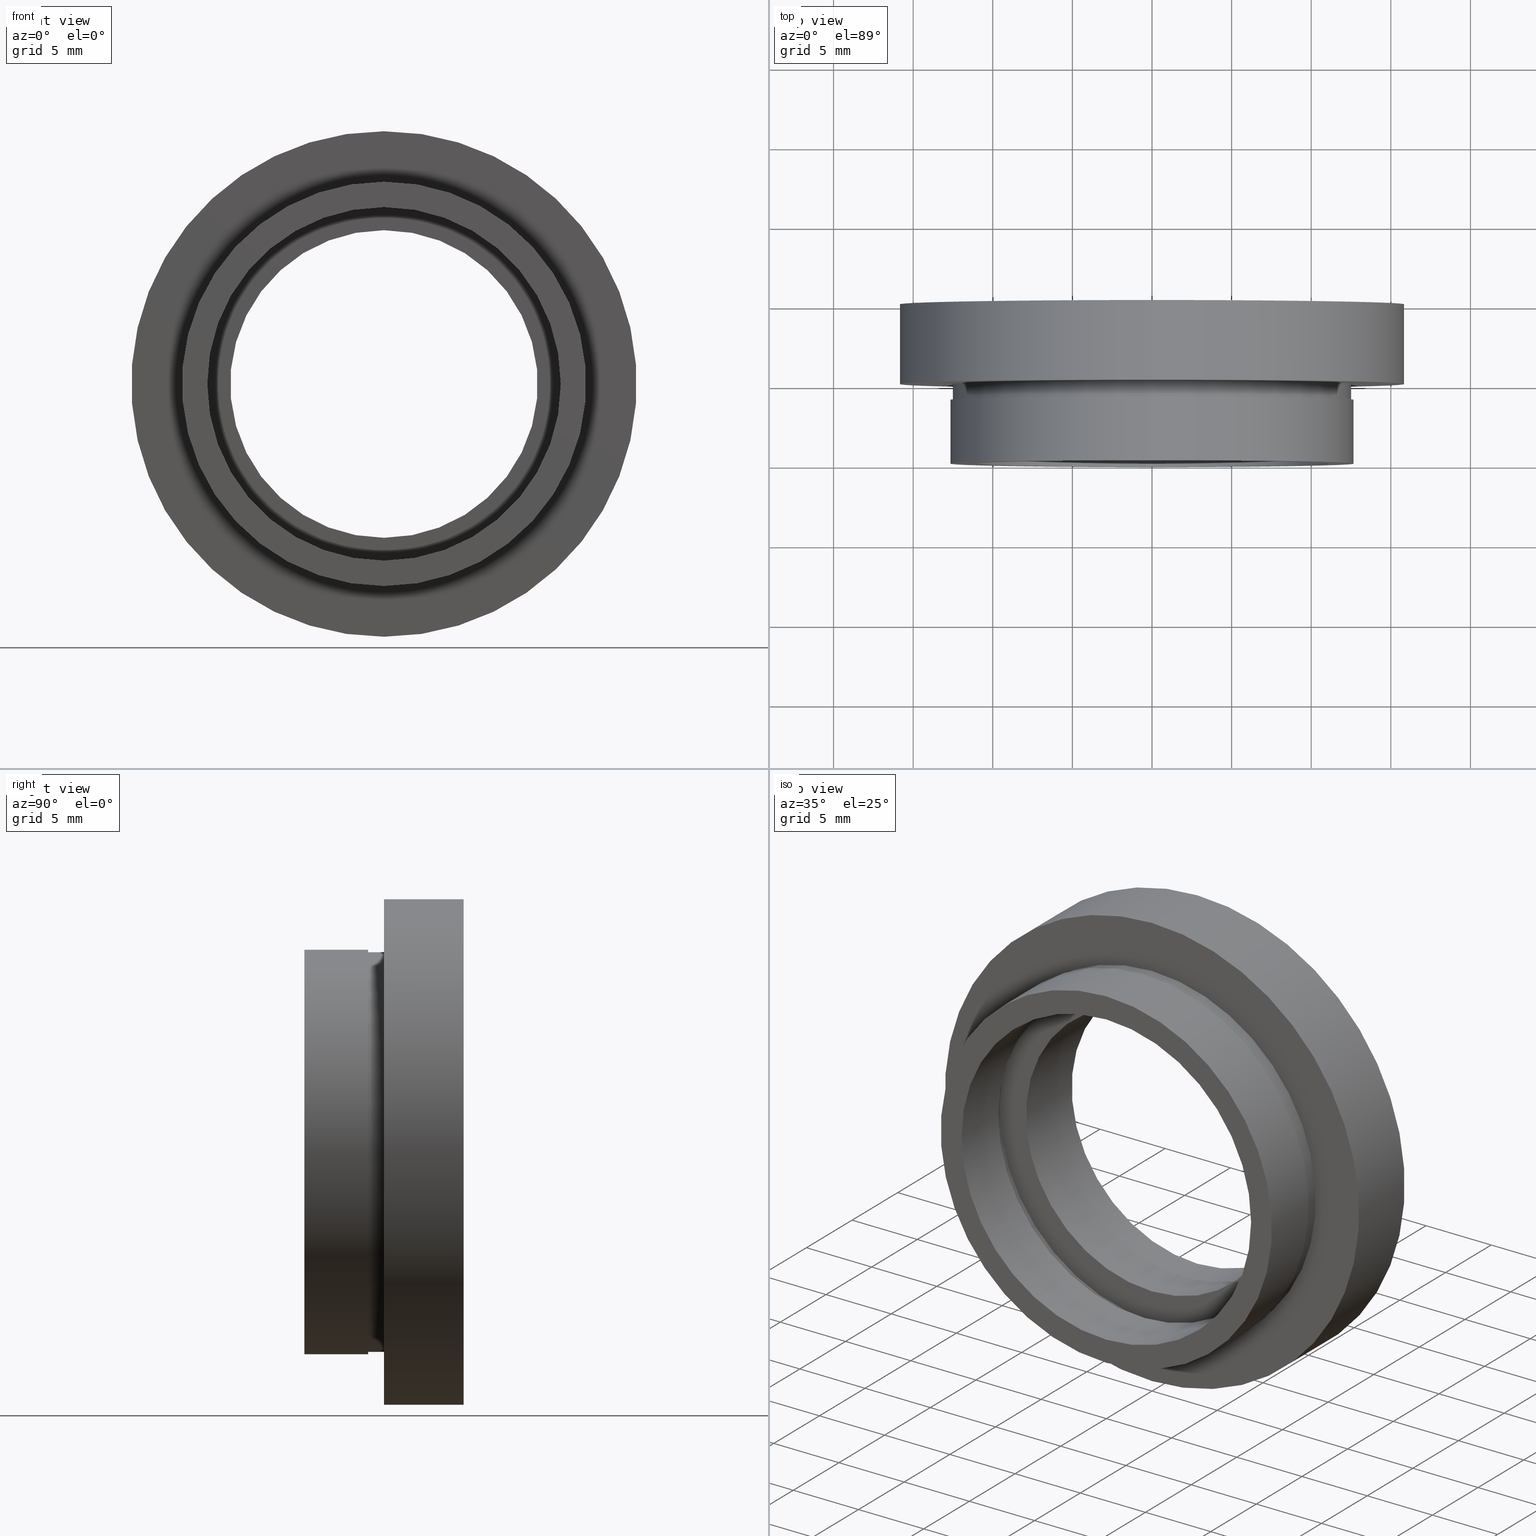
[diagram: canonical four-view strip — front | top / right | iso, engineering-drawing reading convention]
A machine part, canonical four-view strip (front | top / right | iso — engineering-drawing reading convention). The complete STEP part file that produces these views, byte-faithful:
ISO-10303-21;
HEADER;
FILE_DESCRIPTION (( 'STEP AP214' ),
    '1' );
FILE_NAME ('504128.STEP',
    '2019-10-10T08:14:40',
    ( 'user' ),
    ( '΢���й�' ),
    'SwSTEP 2.0',
    'SolidWorks 2016',
    '' );
FILE_SCHEMA (( 'AUTOMOTIVE_DESIGN' ));
ENDSEC;

DATA;
#1 = LINE ( 'NONE', #459, #526 ) ;
#2 = FILL_AREA_STYLE ('',( #574 ) ) ;
#3 = AXIS2_PLACEMENT_3D ( 'NONE', #190, #290, #229 ) ;
#4 = DIRECTION ( 'NONE',  ( -0.0000000000000000000, 1.000000000000000000, 0.0000000000000000000 ) ) ;
#5 = SURFACE_STYLE_FILL_AREA ( #564 ) ;
#6 = APPLICATION_PROTOCOL_DEFINITION ( 'draft international standard', 'automotive_design', 1998, #347 ) ;
#7 = DIRECTION ( 'NONE',  ( -0.0000000000000000000, 1.000000000000000000, -0.0000000000000000000 ) ) ;
#8 = CIRCLE ( 'NONE', #163, 15.87500000000000000 ) ;
#9 = FACE_BOUND ( 'NONE', #257, .T. ) ;
#10 = MECHANICAL_DESIGN_GEOMETRIC_PRESENTATION_REPRESENTATION (  '', ( #51 ), #32 ) ;
#11 = ORIENTED_EDGE ( 'NONE', *, *, #52, .F. ) ;
#12 = ORIENTED_EDGE ( 'NONE', *, *, #150, .T. ) ;
#13 = EDGE_CURVE ( 'NONE', #619, #624, #74, .T. ) ;
#14 =( LENGTH_UNIT ( ) NAMED_UNIT ( * ) SI_UNIT ( .MILLI., .METRE. ) );
#15 = CARTESIAN_POINT ( 'NONE',  ( 1.536931732929928400E-015, 4.000000000000000000, -12.55000000000000100 ) ) ;
#16 = STYLED_ITEM ( 'NONE', ( #248 ), #357 ) ;
#17 = DIRECTION ( 'NONE',  ( 0.0000000000000000000, 0.0000000000000000000, 1.000000000000000000 ) ) ;
#18 = EDGE_LOOP ( 'NONE', ( #394, #447 ) ) ;
#19 = DIRECTION ( 'NONE',  ( -0.0000000000000000000, 1.000000000000000000, -0.0000000000000000000 ) ) ;
#20 = FACE_BOUND ( 'NONE', #18, .T. ) ;
#21 = CARTESIAN_POINT ( 'NONE',  ( 0.0000000000000000000, 5.000000000000000900, 9.660000000000000100 ) ) ;
#22 = UNCERTAINTY_MEASURE_WITH_UNIT (LENGTH_MEASURE( 1.000000000000000100E-005 ), #204, 'distance_accuracy_value', 'NONE');
#23 = DIRECTION ( 'NONE',  ( 0.0000000000000000000, 0.0000000000000000000, 1.000000000000000000 ) ) ;
#24 = DIRECTION ( 'NONE',  ( 0.0000000000000000000, -1.000000000000000000, 0.0000000000000000000 ) ) ;
#25 = DIRECTION ( 'NONE',  ( 0.0000000000000000000, 0.0000000000000000000, 1.000000000000000000 ) ) ;
#26 = CIRCLE ( 'NONE', #228, 12.55000000000000100 ) ;
#27 = CYLINDRICAL_SURFACE ( 'NONE', #243, 11.70000000000000100 ) ;
#28 = ORIENTED_EDGE ( 'NONE', *, *, #448, .T. ) ;
#29 = EDGE_LOOP ( 'NONE', ( #147, #104 ) ) ;
#30 = AXIS2_PLACEMENT_3D ( 'NONE', #555, #203, #601 ) ;
#31 = FILL_AREA_STYLE_COLOUR ( '', #388 ) ;
#32 =( GEOMETRIC_REPRESENTATION_CONTEXT ( 3 ) GLOBAL_UNCERTAINTY_ASSIGNED_CONTEXT ( ( #558 ) ) GLOBAL_UNIT_ASSIGNED_CONTEXT ( ( #422, #587, #267 ) ) REPRESENTATION_CONTEXT ( 'NONE', 'WORKASPACE' ) );
#33 = FACE_OUTER_BOUND ( 'NONE', #342, .T. ) ;
#34 = EDGE_CURVE ( 'NONE', #483, #425, #127, .T. ) ;
#35 = EDGE_LOOP ( 'NONE', ( #225, #120, #83, #468 ) ) ;
#36 = FACE_BOUND ( 'NONE', #29, .T. ) ;
#37 = FILL_AREA_STYLE ('',( #31 ) ) ;
#38 = CARTESIAN_POINT ( 'NONE',  ( 0.0000000000000000000, 13.74468085106383300, 12.69999999999999900 ) ) ;
#39 = SURFACE_SIDE_STYLE ('',( #233 ) ) ;
#40 = CARTESIAN_POINT ( 'NONE',  ( 0.0000000000000000000, 4.000000000000000000, 0.0000000000000000000 ) ) ;
#41 = FILL_AREA_STYLE_COLOUR ( '', #184 ) ;
#42 = UNCERTAINTY_MEASURE_WITH_UNIT (LENGTH_MEASURE( 1.000000000000000100E-005 ), #313, 'distance_accuracy_value', 'NONE');
#43 = DIRECTION ( 'NONE',  ( -0.0000000000000000000, 1.000000000000000000, -0.0000000000000000000 ) ) ;
#44 = AXIS2_PLACEMENT_3D ( 'NONE', #89, #81, #100 ) ;
#45 = VECTOR ( 'NONE', #581, 1000.000000000000000 ) ;
#46 = LINE ( 'NONE', #169, #45 ) ;
#47 = CARTESIAN_POINT ( 'NONE',  ( 1.555301434917138400E-015, 0.0000000000000000000, -12.69999999999999900 ) ) ;
#48 = FACE_OUTER_BOUND ( 'NONE', #109, .T. ) ;
#49 = VERTEX_POINT ( 'NONE', #279 ) ;
#50 = CARTESIAN_POINT ( 'NONE',  ( 1.555301434917138400E-015, 4.000000000000000000, -12.69999999999999900 ) ) ;
#51 = STYLED_ITEM ( 'NONE', ( #183 ), #269 ) ;
#52 = EDGE_CURVE ( 'NONE', #569, #594, #46, .T. ) ;
#53 = FACE_OUTER_BOUND ( 'NONE', #92, .T. ) ;
#54 = VECTOR ( 'NONE', #463, 1000.000000000000000 ) ;
#55 = CIRCLE ( 'NONE', #370, 11.70000000000000100 ) ;
#56 = ADVANCED_FACE ( 'NONE', ( #48 ), #27, .F. ) ;
#57 = VECTOR ( 'NONE', #376, 1000.000000000000000 ) ;
#58 = AXIS2_PLACEMENT_3D ( 'NONE', #334, #337, #95 ) ;
#59 = CARTESIAN_POINT ( 'NONE',  ( 0.0000000000000000000, 13.74468085106383300, 0.0000000000000000000 ) ) ;
#60 = PRESENTATION_STYLE_ASSIGNMENT (( #531 ) ) ;
#61 = CYLINDRICAL_SURFACE ( 'NONE', #187, 9.660000000000000100 ) ;
#62 = PLANE ( 'NONE',  #206 ) ;
#63 = ORIENTED_EDGE ( 'NONE', *, *, #548, .T. ) ;
#64 = ORIENTED_EDGE ( 'NONE', *, *, #13, .T. ) ;
#65 = PRODUCT ( '504128', '504128', '', ( #68 ) ) ;
#66 = ORIENTED_EDGE ( 'NONE', *, *, #312, .F. ) ;
#67 = EDGE_LOOP ( 'NONE', ( #97, #148 ) ) ;
#68 = PRODUCT_CONTEXT ( 'NONE', #306, 'mechanical' ) ;
#69 = UNCERTAINTY_MEASURE_WITH_UNIT (LENGTH_MEASURE( 1.000000000000000100E-005 ), #118, 'distance_accuracy_value', 'NONE');
#70 = AXIS2_PLACEMENT_3D ( 'NONE', #139, #141, #146 ) ;
#71 = DIRECTION ( 'NONE',  ( 0.0000000000000000000, 0.0000000000000000000, 1.000000000000000000 ) ) ;
#72 = DIRECTION ( 'NONE',  ( -0.0000000000000000000, 1.000000000000000000, -0.0000000000000000000 ) ) ;
#73 = AXIS2_PLACEMENT_3D ( 'NONE', #191, #421, #363 ) ;
#74 = LINE ( 'NONE', #396, #57 ) ;
#75 = AXIS2_PLACEMENT_3D ( 'NONE', #588, #186, #524 ) ;
#76 = EDGE_LOOP ( 'NONE', ( #175, #476, #488, #414 ) ) ;
#77 = CIRCLE ( 'NONE', #547, 11.70000000000000100 ) ;
#78 = DIRECTION ( 'NONE',  ( -0.0000000000000000000, 1.000000000000000000, -0.0000000000000000000 ) ) ;
#79 = EDGE_CURVE ( 'NONE', #130, #140, #55, .T. ) ;
#80 = CARTESIAN_POINT ( 'NONE',  ( 0.0000000000000000000, 13.74468085106383300, 0.0000000000000000000 ) ) ;
#81 = DIRECTION ( 'NONE',  ( -0.0000000000000000000, 1.000000000000000000, -0.0000000000000000000 ) ) ;
#82 = ADVANCED_FACE ( 'NONE', ( #36, #33 ), #298, .F. ) ;
#83 = ORIENTED_EDGE ( 'NONE', *, *, #52, .T. ) ;
#84 = CARTESIAN_POINT ( 'NONE',  ( 0.0000000000000000000, 4.000000000000000000, 0.0000000000000000000 ) ) ;
#85 = DIRECTION ( 'NONE',  ( 0.0000000000000000000, 0.0000000000000000000, 1.000000000000000000 ) ) ;
#86 = ORIENTED_EDGE ( 'NONE', *, *, #246, .T. ) ;
#87 = MECHANICAL_DESIGN_GEOMETRIC_PRESENTATION_REPRESENTATION (  '', ( #90 ), #145 ) ;
#88 = DIRECTION ( 'NONE',  ( -0.0000000000000000000, 1.000000000000000000, -0.0000000000000000000 ) ) ;
#89 = CARTESIAN_POINT ( 'NONE',  ( 0.0000000000000000000, 4.000000000000000000, 0.0000000000000000000 ) ) ;
#90 = STYLED_ITEM ( 'NONE', ( #250 ), #277 ) ;
#91 = EDGE_CURVE ( 'NONE', #624, #589, #26, .T. ) ;
#92 = EDGE_LOOP ( 'NONE', ( #28, #86 ) ) ;
#93 = ORIENTED_EDGE ( 'NONE', *, *, #91, .T. ) ;
#94 = STYLED_ITEM ( 'NONE', ( #60 ), #495 ) ;
#95 = DIRECTION ( 'NONE',  ( 0.0000000000000000000, 0.0000000000000000000, 1.000000000000000000 ) ) ;
#96 = VERTEX_POINT ( 'NONE', #353 ) ;
#97 = ORIENTED_EDGE ( 'NONE', *, *, #180, .F. ) ;
#98 = ORIENTED_EDGE ( 'NONE', *, *, #515, .T. ) ;
#99 = CARTESIAN_POINT ( 'NONE',  ( 0.0000000000000000000, 9.999999999999998200, 0.0000000000000000000 ) ) ;
#100 = DIRECTION ( 'NONE',  ( 0.0000000000000000000, 0.0000000000000000000, 1.000000000000000000 ) ) ;
#101 = CARTESIAN_POINT ( 'NONE',  ( 0.0000000000000000000, 13.74468085106383300, 11.70000000000000100 ) ) ;
#102 = DIRECTION ( 'NONE',  ( 0.0000000000000000000, 0.0000000000000000000, 1.000000000000000000 ) ) ;
#103 = ORIENTED_EDGE ( 'NONE', *, *, #484, .T. ) ;
#104 = ORIENTED_EDGE ( 'NONE', *, *, #578, .F. ) ;
#105 = ORIENTED_EDGE ( 'NONE', *, *, #263, .T. ) ;
#106 = AXIS2_PLACEMENT_3D ( 'NONE', #84, #362, #23 ) ;
#107 = AXIS2_PLACEMENT_3D ( 'NONE', #213, #499, #289 ) ;
#108 = EDGE_CURVE ( 'NONE', #428, #569, #464, .T. ) ;
#109 = EDGE_LOOP ( 'NONE', ( #533, #437, #98, #12 ) ) ;
#110 = VERTEX_POINT ( 'NONE', #537 ) ;
#111 = ORIENTED_EDGE ( 'NONE', *, *, #331, .F. ) ;
#112 = AXIS2_PLACEMENT_3D ( 'NONE', #593, #436, #129 ) ;
#113 = DIRECTION ( 'NONE',  ( 0.0000000000000000000, 0.0000000000000000000, 1.000000000000000000 ) ) ;
#114 =( NAMED_UNIT ( * ) PLANE_ANGLE_UNIT ( ) SI_UNIT ( $, .RADIAN. ) );
#115 = CYLINDRICAL_SURFACE ( 'NONE', #614, 12.55000000000000100 ) ;
#116 = EDGE_LOOP ( 'NONE', ( #455, #450, #454, #111 ) ) ;
#117 =( NAMED_UNIT ( * ) PLANE_ANGLE_UNIT ( ) SI_UNIT ( $, .RADIAN. ) );
#118 =( LENGTH_UNIT ( ) NAMED_UNIT ( * ) SI_UNIT ( .MILLI., .METRE. ) );
#119 = EDGE_LOOP ( 'NONE', ( #142, #64, #176, #245 ) ) ;
#120 = ORIENTED_EDGE ( 'NONE', *, *, #296, .F. ) ;
#121 = CARTESIAN_POINT ( 'NONE',  ( 0.0000000000000000000, 5.000000000000000900, 0.0000000000000000000 ) ) ;
#122 = DIRECTION ( 'NONE',  ( -0.0000000000000000000, 1.000000000000000000, -0.0000000000000000000 ) ) ;
#123 = FACE_OUTER_BOUND ( 'NONE', #76, .T. ) ;
#124 = DIRECTION ( 'NONE',  ( -0.0000000000000000000, 1.000000000000000000, -0.0000000000000000000 ) ) ;
#125 = DIRECTION ( 'NONE',  ( 0.0000000000000000000, 0.0000000000000000000, 1.000000000000000000 ) ) ;
#126 =( GEOMETRIC_REPRESENTATION_CONTEXT ( 3 ) GLOBAL_UNCERTAINTY_ASSIGNED_CONTEXT ( ( #177 ) ) GLOBAL_UNIT_ASSIGNED_CONTEXT ( ( #14, #114, #237 ) ) REPRESENTATION_CONTEXT ( 'NONE', 'WORKASPACE' ) );
#127 = LINE ( 'NONE', #364, #54 ) ;
#128 = ORIENTED_EDGE ( 'NONE', *, *, #484, .F. ) ;
#129 = DIRECTION ( 'NONE',  ( 0.0000000000000000000, 0.0000000000000000000, 1.000000000000000000 ) ) ;
#130 = VERTEX_POINT ( 'NONE', #136 ) ;
#131 = PLANE ( 'NONE',  #58 ) ;
#132 = CIRCLE ( 'NONE', #427, 9.660000000000000100 ) ;
#133 = ORIENTED_EDGE ( 'NONE', *, *, #371, .F. ) ;
#134 = EDGE_LOOP ( 'NONE', ( #66, #359, #103, #545 ) ) ;
#135 =( GEOMETRIC_REPRESENTATION_CONTEXT ( 3 ) GLOBAL_UNCERTAINTY_ASSIGNED_CONTEXT ( ( #22 ) ) GLOBAL_UNIT_ASSIGNED_CONTEXT ( ( #204, #510, #159 ) ) REPRESENTATION_CONTEXT ( 'NONE', 'WORKASPACE' ) );
#136 = CARTESIAN_POINT ( 'NONE',  ( 1.432836755002403300E-015, 5.000000000000000900, -11.70000000000000100 ) ) ;
#137 = AXIS2_PLACEMENT_3D ( 'NONE', #325, #24, #223 ) ;
#138 = PRESENTATION_LAYER_ASSIGNMENT (  '', '', ( #51 ) ) ;
#139 = CARTESIAN_POINT ( 'NONE',  ( 0.0000000000000000000, 10.00000000000000000, 0.0000000000000000000 ) ) ;
#140 = VERTEX_POINT ( 'NONE', #584 ) ;
#141 = DIRECTION ( 'NONE',  ( -0.0000000000000000000, 1.000000000000000000, -0.0000000000000000000 ) ) ;
#142 = ORIENTED_EDGE ( 'NONE', *, *, #343, .T. ) ;
#143 = FILL_AREA_STYLE_COLOUR ( '', #400 ) ;
#144 = CYLINDRICAL_SURFACE ( 'NONE', #162, 11.10000000000000100 ) ;
#145 =( GEOMETRIC_REPRESENTATION_CONTEXT ( 3 ) GLOBAL_UNCERTAINTY_ASSIGNED_CONTEXT ( ( #69 ) ) GLOBAL_UNIT_ASSIGNED_CONTEXT ( ( #118, #241, #157 ) ) REPRESENTATION_CONTEXT ( 'NONE', 'WORKASPACE' ) );
#146 = DIRECTION ( 'NONE',  ( 0.0000000000000000000, 0.0000000000000000000, 1.000000000000000000 ) ) ;
#147 = ORIENTED_EDGE ( 'NONE', *, *, #343, .F. ) ;
#148 = ORIENTED_EDGE ( 'NONE', *, *, #405, .F. ) ;
#149 = AXIS2_PLACEMENT_3D ( 'NONE', #444, #592, #579 ) ;
#150 = EDGE_CURVE ( 'NONE', #140, #130, #77, .T. ) ;
#151 = ADVANCED_FACE ( 'NONE', ( #194, #20 ), #514, .F. ) ;
#152 = ORIENTED_EDGE ( 'NONE', *, *, #209, .T. ) ;
#153 = VERTEX_POINT ( 'NONE', #192 ) ;
#154 = PRESENTATION_LAYER_ASSIGNMENT (  '', '', ( #94 ) ) ;
#155 = CARTESIAN_POINT ( 'NONE',  ( 0.0000000000000000000, 0.0000000000000000000, 0.0000000000000000000 ) ) ;
#156 = UNCERTAINTY_MEASURE_WITH_UNIT (LENGTH_MEASURE( 1.000000000000000100E-005 ), #220, 'distance_accuracy_value', 'NONE');
#157 =( NAMED_UNIT ( * ) SI_UNIT ( $, .STERADIAN. ) SOLID_ANGLE_UNIT ( ) );
#158 = ORIENTED_EDGE ( 'NONE', *, *, #333, .F. ) ;
#159 =( NAMED_UNIT ( * ) SI_UNIT ( $, .STERADIAN. ) SOLID_ANGLE_UNIT ( ) );
#160 = ORIENTED_EDGE ( 'NONE', *, *, #515, .F. ) ;
#161 = DIRECTION ( 'NONE',  ( -0.0000000000000000000, 1.000000000000000000, -0.0000000000000000000 ) ) ;
#162 = AXIS2_PLACEMENT_3D ( 'NONE', #311, #43, #102 ) ;
#163 = AXIS2_PLACEMENT_3D ( 'NONE', #283, #224, #252 ) ;
#164 = VECTOR ( 'NONE', #350, 1000.000000000000000 ) ;
#165 = CARTESIAN_POINT ( 'NONE',  ( 0.0000000000000000000, 9.999999999999998200, 9.660000000000000100 ) ) ;
#166 = CIRCLE ( 'NONE', #107, 11.70000000000000100 ) ;
#167 = SURFACE_STYLE_FILL_AREA ( #432 ) ;
#168 = DIRECTION ( 'NONE',  ( 0.0000000000000000000, 0.0000000000000000000, 1.000000000000000000 ) ) ;
#169 = CARTESIAN_POINT ( 'NONE',  ( 0.0000000000000000000, 13.74468085106383300, 9.660000000000000100 ) ) ;
#170 =( LENGTH_UNIT ( ) NAMED_UNIT ( * ) SI_UNIT ( .MILLI., .METRE. ) );
#171 = DIRECTION ( 'NONE',  ( 0.0000000000000000000, -0.0000000000000000000, -1.000000000000000000 ) ) ;
#172 = FILL_AREA_STYLE_COLOUR ( '', #409 ) ;
#173 = FACE_OUTER_BOUND ( 'NONE', #134, .T. ) ;
#174 = MECHANICAL_DESIGN_GEOMETRIC_PRESENTATION_REPRESENTATION (  '', ( #417 ), #345 ) ;
#175 = ORIENTED_EDGE ( 'NONE', *, *, #13, .F. ) ;
#176 = ORIENTED_EDGE ( 'NONE', *, *, #611, .F. ) ;
#177 = UNCERTAINTY_MEASURE_WITH_UNIT (LENGTH_MEASURE( 1.000000000000000100E-005 ), #14, 'distance_accuracy_value', 'NONE');
#178 = AXIS2_PLACEMENT_3D ( 'NONE', #386, #543, #534 ) ;
#179 = LINE ( 'NONE', #231, #365 ) ;
#180 = EDGE_CURVE ( 'NONE', #582, #595, #8, .T. ) ;
#181 = SURFACE_STYLE_FILL_AREA ( #596 ) ;
#182 = DIRECTION ( 'NONE',  ( 0.0000000000000000000, 0.0000000000000000000, 1.000000000000000000 ) ) ;
#183 = PRESENTATION_STYLE_ASSIGNMENT (( #332 ) ) ;
#184 = COLOUR_RGB ( '',1.000000000000000000, 1.000000000000000000, 1.000000000000000000 ) ;
#185 = CIRCLE ( 'NONE', #585, 11.70000000000000100 ) ;
#186 = DIRECTION ( 'NONE',  ( -0.0000000000000000000, 1.000000000000000000, -0.0000000000000000000 ) ) ;
#187 = AXIS2_PLACEMENT_3D ( 'NONE', #59, #604, #326 ) ;
#188 = CIRCLE ( 'NONE', #75, 15.87500000000000000 ) ;
#189 = EDGE_LOOP ( 'NONE', ( #369, #434 ) ) ;
#190 = CARTESIAN_POINT ( 'NONE',  ( 0.0000000000000000000, 4.000000000000000000, 0.0000000000000000000 ) ) ;
#191 = CARTESIAN_POINT ( 'NONE',  ( 0.0000000000000000000, 13.74468085106383300, 0.0000000000000000000 ) ) ;
#192 = CARTESIAN_POINT ( 'NONE',  ( 0.0000000000000000000, 0.0000000000000000000, 11.10000000000000100 ) ) ;
#193 = CIRCLE ( 'NONE', #532, 11.10000000000000100 ) ;
#194 = FACE_OUTER_BOUND ( 'NONE', #413, .T. ) ;
#195 = ORIENTED_EDGE ( 'NONE', *, *, #341, .T. ) ;
#196 = MECHANICAL_DESIGN_GEOMETRIC_PRESENTATION_REPRESENTATION (  '', ( #94 ), #126 ) ;
#197 = AXIS2_PLACEMENT_3D ( 'NONE', #378, #568, #244 ) ;
#198 = EDGE_CURVE ( 'NONE', #425, #222, #328, .T. ) ;
#199 = CARTESIAN_POINT ( 'NONE',  ( 1.432836755002403300E-015, 4.000000000000000000, -11.70000000000000100 ) ) ;
#200 = ORIENTED_EDGE ( 'NONE', *, *, #408, .T. ) ;
#201 = ORIENTED_EDGE ( 'NONE', *, *, #180, .T. ) ;
#202 = PRESENTATION_LAYER_ASSIGNMENT (  '', '', ( #417 ) ) ;
#203 = DIRECTION ( 'NONE',  ( -0.0000000000000000000, 1.000000000000000000, -0.0000000000000000000 ) ) ;
#204 =( LENGTH_UNIT ( ) NAMED_UNIT ( * ) SI_UNIT ( .MILLI., .METRE. ) );
#205 = DIRECTION ( 'NONE',  ( -0.0000000000000000000, 1.000000000000000000, -0.0000000000000000000 ) ) ;
#206 = AXIS2_PLACEMENT_3D ( 'NONE', #475, #4, #550 ) ;
#207 = FACE_OUTER_BOUND ( 'NONE', #521, .T. ) ;
#208 = VECTOR ( 'NONE', #616, 1000.000000000000000 ) ;
#209 = EDGE_CURVE ( 'NONE', #595, #110, #1, .T. ) ;
#210 = ORIENTED_EDGE ( 'NONE', *, *, #405, .T. ) ;
#211 = DIRECTION ( 'NONE',  ( -0.0000000000000000000, 1.000000000000000000, -0.0000000000000000000 ) ) ;
#212 = DIRECTION ( 'NONE',  ( 0.0000000000000000000, 0.0000000000000000000, 1.000000000000000000 ) ) ;
#213 = CARTESIAN_POINT ( 'NONE',  ( 0.0000000000000000000, 4.000000000000000000, 0.0000000000000000000 ) ) ;
#214 = ADVANCED_FACE ( 'NONE', ( #255, #9 ), #62, .F. ) ;
#215 = CARTESIAN_POINT ( 'NONE',  ( 0.0000000000000000000, 9.999999999999998200, 0.0000000000000000000 ) ) ;
#216 = CARTESIAN_POINT ( 'NONE',  ( 1.183008807976343300E-015, 5.000000000000000900, -9.660000000000000100 ) ) ;
#217 =( GEOMETRIC_REPRESENTATION_CONTEXT ( 3 ) GLOBAL_UNCERTAINTY_ASSIGNED_CONTEXT ( ( #348 ) ) GLOBAL_UNIT_ASSIGNED_CONTEXT ( ( #462, #117, #404 ) ) REPRESENTATION_CONTEXT ( 'NONE', 'WORKASPACE' ) );
#218 = LINE ( 'NONE', #101, #431 ) ;
#219 = SURFACE_SIDE_STYLE ('',( #5 ) ) ;
#220 =( LENGTH_UNIT ( ) NAMED_UNIT ( * ) SI_UNIT ( .MILLI., .METRE. ) );
#221 = ORIENTED_EDGE ( 'NONE', *, *, #198, .T. ) ;
#222 = VERTEX_POINT ( 'NONE', #608 ) ;
#223 = DIRECTION ( 'NONE',  ( 0.0000000000000000000, -0.0000000000000000000, -1.000000000000000000 ) ) ;
#224 = DIRECTION ( 'NONE',  ( -0.0000000000000000000, 1.000000000000000000, -0.0000000000000000000 ) ) ;
#225 = ORIENTED_EDGE ( 'NONE', *, *, #600, .F. ) ;
#226 = VERTEX_POINT ( 'NONE', #618 ) ;
#227 = DIRECTION ( 'NONE',  ( -0.0000000000000000000, 1.000000000000000000, -0.0000000000000000000 ) ) ;
#228 = AXIS2_PLACEMENT_3D ( 'NONE', #407, #530, #236 ) ;
#229 = DIRECTION ( 'NONE',  ( 0.0000000000000000000, 0.0000000000000000000, 1.000000000000000000 ) ) ;
#230 = EDGE_CURVE ( 'NONE', #582, #49, #559, .T. ) ;
#231 = CARTESIAN_POINT ( 'NONE',  ( 1.432836755002403300E-015, 13.74468085106383300, -11.70000000000000100 ) ) ;
#232 = DIRECTION ( 'NONE',  ( 0.0000000000000000000, -1.000000000000000000, 0.0000000000000000000 ) ) ;
#233 = SURFACE_STYLE_FILL_AREA ( #546 ) ;
#234 = ORIENTED_EDGE ( 'NONE', *, *, #34, .F. ) ;
#235 =( NAMED_UNIT ( * ) SI_UNIT ( $, .STERADIAN. ) SOLID_ANGLE_UNIT ( ) );
#236 = DIRECTION ( 'NONE',  ( 0.0000000000000000000, 0.0000000000000000000, 1.000000000000000000 ) ) ;
#237 =( NAMED_UNIT ( * ) SI_UNIT ( $, .STERADIAN. ) SOLID_ANGLE_UNIT ( ) );
#238 = CARTESIAN_POINT ( 'NONE',  ( 0.0000000000000000000, 13.74468085106383300, 0.0000000000000000000 ) ) ;
#239 = AXIS2_PLACEMENT_3D ( 'NONE', #557, #356, #25 ) ;
#240 = CIRCLE ( 'NONE', #106, 12.69999999999999900 ) ;
#241 =( NAMED_UNIT ( * ) PLANE_ANGLE_UNIT ( ) SI_UNIT ( $, .RADIAN. ) );
#242 = CIRCLE ( 'NONE', #610, 12.69999999999999900 ) ;
#243 = AXIS2_PLACEMENT_3D ( 'NONE', #238, #270, #486 ) ;
#244 = DIRECTION ( 'NONE',  ( 0.0000000000000000000, 0.0000000000000000000, 1.000000000000000000 ) ) ;
#245 = ORIENTED_EDGE ( 'NONE', *, *, #622, .F. ) ;
#246 = EDGE_CURVE ( 'NONE', #467, #336, #166, .T. ) ;
#247 = FILL_AREA_STYLE ('',( #143 ) ) ;
#248 = PRESENTATION_STYLE_ASSIGNMENT (( #553 ) ) ;
#249 = AXIS2_PLACEMENT_3D ( 'NONE', #566, #322, #607 ) ;
#250 = PRESENTATION_STYLE_ASSIGNMENT (( #487 ) ) ;
#251 = PRESENTATION_STYLE_ASSIGNMENT (( #346 ) ) ;
#252 = DIRECTION ( 'NONE',  ( 0.0000000000000000000, 0.0000000000000000000, 1.000000000000000000 ) ) ;
#253 = CARTESIAN_POINT ( 'NONE',  ( 0.0000000000000000000, 13.74468085106383300, 0.0000000000000000000 ) ) ;
#254 = CYLINDRICAL_SURFACE ( 'NONE', #472, 15.87500000000000000 ) ;
#255 = FACE_OUTER_BOUND ( 'NONE', #189, .T. ) ;
#256 = SURFACE_SIDE_STYLE ('',( #181 ) ) ;
#257 = EDGE_LOOP ( 'NONE', ( #482, #360 ) ) ;
#258 = DIRECTION ( 'NONE',  ( -0.0000000000000000000, 1.000000000000000000, -0.0000000000000000000 ) ) ;
#259 = CARTESIAN_POINT ( 'NONE',  ( 1.536931732929928400E-015, 5.000000000000000900, -12.55000000000000100 ) ) ;
#260 = SURFACE_SIDE_STYLE ('',( #167 ) ) ;
#261 = DIRECTION ( 'NONE',  ( 0.0000000000000000000, 0.0000000000000000000, 1.000000000000000000 ) ) ;
#262 = CYLINDRICAL_SURFACE ( 'NONE', #304, 11.10000000000000100 ) ;
#263 = EDGE_CURVE ( 'NONE', #49, #110, #188, .T. ) ;
#264 = FACE_OUTER_BOUND ( 'NONE', #541, .T. ) ;
#265 = COLOUR_RGB ( '',1.000000000000000000, 1.000000000000000000, 1.000000000000000000 ) ;
#266 = CARTESIAN_POINT ( 'NONE',  ( 0.0000000000000000000, 13.74468085106383300, 0.0000000000000000000 ) ) ;
#267 =( NAMED_UNIT ( * ) SI_UNIT ( $, .STERADIAN. ) SOLID_ANGLE_UNIT ( ) );
#268 = PLANE ( 'NONE',  #137 ) ;
#269 = ADVANCED_FACE ( 'NONE', ( #173 ), #262, .F. ) ;
#270 = DIRECTION ( 'NONE',  ( -0.0000000000000000000, 1.000000000000000000, -0.0000000000000000000 ) ) ;
#271 = CIRCLE ( 'NONE', #280, 11.10000000000000100 ) ;
#272 = AXIS2_PLACEMENT_3D ( 'NONE', #99, #78, #609 ) ;
#273 = VERTEX_POINT ( 'NONE', #451 ) ;
#274 = ORIENTED_EDGE ( 'NONE', *, *, #209, .F. ) ;
#275 = EDGE_CURVE ( 'NONE', #273, #483, #242, .T. ) ;
#276 = DIRECTION ( 'NONE',  ( -0.0000000000000000000, 1.000000000000000000, -0.0000000000000000000 ) ) ;
#277 = ADVANCED_FACE ( 'NONE', ( #264 ), #324, .F. ) ;
#278 = SURFACE_STYLE_USAGE ( .BOTH. , #286 ) ;
#279 = CARTESIAN_POINT ( 'NONE',  ( 0.0000000000000000000, 10.00000000000000000, 15.87500000000000000 ) ) ;
#280 = AXIS2_PLACEMENT_3D ( 'NONE', #40, #7, #17 ) ;
#281 =( LENGTH_UNIT ( ) NAMED_UNIT ( * ) SI_UNIT ( .MILLI., .METRE. ) );
#282 = CARTESIAN_POINT ( 'NONE',  ( 1.359357947053562400E-015, 4.000000000000000000, -11.10000000000000100 ) ) ;
#283 = CARTESIAN_POINT ( 'NONE',  ( 0.0000000000000000000, 5.000000000000000900, 0.0000000000000000000 ) ) ;
#284 = FACE_OUTER_BOUND ( 'NONE', #119, .T. ) ;
#285 = EDGE_LOOP ( 'NONE', ( #274, #210, #393, #426 ) ) ;
#286 = SURFACE_SIDE_STYLE ('',( #403 ) ) ;
#287 = UNCERTAINTY_MEASURE_WITH_UNIT (LENGTH_MEASURE( 1.000000000000000100E-005 ), #281, 'distance_accuracy_value', 'NONE');
#288 = VERTEX_POINT ( 'NONE', #381 ) ;
#289 = DIRECTION ( 'NONE',  ( 0.0000000000000000000, 0.0000000000000000000, 1.000000000000000000 ) ) ;
#290 = DIRECTION ( 'NONE',  ( -0.0000000000000000000, 1.000000000000000000, -0.0000000000000000000 ) ) ;
#291 = FACE_OUTER_BOUND ( 'NONE', #35, .T. ) ;
#292 = AXIS2_PLACEMENT_3D ( 'NONE', #121, #406, #71 ) ;
#293 = EDGE_CURVE ( 'NONE', #594, #288, #300, .T. ) ;
#294 = EDGE_LOOP ( 'NONE', ( #479, #560 ) ) ;
#295 = CIRCLE ( 'NONE', #511, 11.10000000000000100 ) ;
#296 = EDGE_CURVE ( 'NONE', #569, #428, #301, .T. ) ;
#297 = SURFACE_STYLE_FILL_AREA ( #37 ) ;
#298 = PLANE ( 'NONE',  #308 ) ;
#299 = SURFACE_SIDE_STYLE ('',( #315 ) ) ;
#300 = CIRCLE ( 'NONE', #272, 9.660000000000000100 ) ;
#301 = CIRCLE ( 'NONE', #30, 9.660000000000000100 ) ;
#302 = ORIENTED_EDGE ( 'NONE', *, *, #602, .F. ) ;
#303 = LINE ( 'NONE', #552, #316 ) ;
#304 = AXIS2_PLACEMENT_3D ( 'NONE', #617, #492, #411 ) ;
#305 = EDGE_LOOP ( 'NONE', ( #612, #93 ) ) ;
#306 = APPLICATION_CONTEXT ( 'automotive_design' ) ;
#307 =( NAMED_UNIT ( * ) PLANE_ANGLE_UNIT ( ) SI_UNIT ( $, .RADIAN. ) );
#308 = AXIS2_PLACEMENT_3D ( 'NONE', #461, #232, #171 ) ;
#309 = FACE_OUTER_BOUND ( 'NONE', #67, .T. ) ;
#310 = CARTESIAN_POINT ( 'NONE',  ( 0.0000000000000000000, 0.0000000000000000000, 0.0000000000000000000 ) ) ;
#311 = CARTESIAN_POINT ( 'NONE',  ( 0.0000000000000000000, 13.74468085106383300, 0.0000000000000000000 ) ) ;
#312 = EDGE_CURVE ( 'NONE', #96, #153, #295, .T. ) ;
#313 =( LENGTH_UNIT ( ) NAMED_UNIT ( * ) SI_UNIT ( .MILLI., .METRE. ) );
#314 = COLOUR_RGB ( '',1.000000000000000000, 1.000000000000000000, 1.000000000000000000 ) ;
#315 = SURFACE_STYLE_FILL_AREA ( #2 ) ;
#316 = VECTOR ( 'NONE', #562, 1000.000000000000000 ) ;
#317 = CARTESIAN_POINT ( 'NONE',  ( 0.0000000000000000000, 4.000000000000000000, 0.0000000000000000000 ) ) ;
#318 = ADVANCED_FACE ( 'NONE', ( #329 ), #420, .T. ) ;
#319 = DIRECTION ( 'NONE',  ( -0.0000000000000000000, 1.000000000000000000, -0.0000000000000000000 ) ) ;
#320 = CARTESIAN_POINT ( 'NONE',  ( 0.0000000000000000000, 4.000000000000000000, 11.70000000000000100 ) ) ;
#321 = UNCERTAINTY_MEASURE_WITH_UNIT (LENGTH_MEASURE( 1.000000000000000100E-005 ), #170, 'distance_accuracy_value', 'NONE');
#322 = DIRECTION ( 'NONE',  ( 0.0000000000000000000, -1.000000000000000000, 0.0000000000000000000 ) ) ;
#323 =( NAMED_UNIT ( * ) PLANE_ANGLE_UNIT ( ) SI_UNIT ( $, .RADIAN. ) );
#324 = CYLINDRICAL_SURFACE ( 'NONE', #112, 9.660000000000000100 ) ;
#325 = CARTESIAN_POINT ( 'NONE',  ( 11.10000000000000100, 4.000000000000000000, 0.0000000000000000000 ) ) ;
#326 = DIRECTION ( 'NONE',  ( 0.0000000000000000000, 0.0000000000000000000, 1.000000000000000000 ) ) ;
#327 = ORIENTED_EDGE ( 'NONE', *, *, #275, .F. ) ;
#328 = CIRCLE ( 'NONE', #197, 12.69999999999999900 ) ;
#329 = FACE_OUTER_BOUND ( 'NONE', #527, .T. ) ;
#330 =( GEOMETRIC_REPRESENTATION_CONTEXT ( 3 ) GLOBAL_UNCERTAINTY_ASSIGNED_CONTEXT ( ( #321 ) ) GLOBAL_UNIT_ASSIGNED_CONTEXT ( ( #170, #474, #415 ) ) REPRESENTATION_CONTEXT ( 'NONE', 'WORKASPACE' ) );
#331 = EDGE_CURVE ( 'NONE', #273, #222, #375, .T. ) ;
#332 = SURFACE_STYLE_USAGE ( .BOTH. , #260 ) ;
#333 = EDGE_CURVE ( 'NONE', #226, #500, #383, .T. ) ;
#334 = CARTESIAN_POINT ( 'NONE',  ( 15.87500000000000000, 5.000000000000000900, 0.0000000000000000000 ) ) ;
#335 = PRODUCT_DEFINITION_SHAPE ( 'NONE', 'NONE',  #501 ) ;
#336 = VERTEX_POINT ( 'NONE', #320 ) ;
#337 = DIRECTION ( 'NONE',  ( -0.0000000000000000000, 1.000000000000000000, 0.0000000000000000000 ) ) ;
#338 = FACE_OUTER_BOUND ( 'NONE', #586, .T. ) ;
#339 = PRESENTATION_LAYER_ASSIGNMENT (  '', '', ( #90 ) ) ;
#340 = DIRECTION ( 'NONE',  ( -0.0000000000000000000, 1.000000000000000000, -0.0000000000000000000 ) ) ;
#341 = EDGE_CURVE ( 'NONE', #110, #49, #374, .T. ) ;
#342 = EDGE_LOOP ( 'NONE', ( #63, #221 ) ) ;
#343 = EDGE_CURVE ( 'NONE', #351, #619, #423, .T. ) ;
#344 = PRESENTATION_STYLE_ASSIGNMENT (( #496 ) ) ;
#345 =( GEOMETRIC_REPRESENTATION_CONTEXT ( 3 ) GLOBAL_UNCERTAINTY_ASSIGNED_CONTEXT ( ( #156 ) ) GLOBAL_UNIT_ASSIGNED_CONTEXT ( ( #220, #323, #471 ) ) REPRESENTATION_CONTEXT ( 'NONE', 'WORKASPACE' ) );
#346 = SURFACE_STYLE_USAGE ( .BOTH. , #429 ) ;
#347 = APPLICATION_CONTEXT ( 'automotive_design' ) ;
#348 = UNCERTAINTY_MEASURE_WITH_UNIT (LENGTH_MEASURE( 1.000000000000000100E-005 ), #462, 'distance_accuracy_value', 'NONE');
#349 = APPLICATION_PROTOCOL_DEFINITION ( 'draft international standard', 'automotive_design', 1998, #306 ) ;
#350 = DIRECTION ( 'NONE',  ( -0.0000000000000000000, 1.000000000000000000, -0.0000000000000000000 ) ) ;
#351 = VERTEX_POINT ( 'NONE', #498 ) ;
#352 = CARTESIAN_POINT ( 'NONE',  ( 0.0000000000000000000, 13.74468085106383300, 12.55000000000000100 ) ) ;
#353 = CARTESIAN_POINT ( 'NONE',  ( 1.359357947053562400E-015, 0.0000000000000000000, -11.10000000000000100 ) ) ;
#354 = MECHANICAL_DESIGN_GEOMETRIC_PRESENTATION_REPRESENTATION (  '', ( #389 ), #330 ) ;
#355 = CARTESIAN_POINT ( 'NONE',  ( 0.0000000000000000000, 5.000000000000000900, 15.87500000000000000 ) ) ;
#356 = DIRECTION ( 'NONE',  ( -0.0000000000000000000, 1.000000000000000000, -0.0000000000000000000 ) ) ;
#357 = ADVANCED_BREP_SHAPE_REPRESENTATION ( '504128', ( #567, #598 ), #217 ) ;
#358 = FILL_AREA_STYLE_COLOUR ( '', #469 ) ;
#359 = ORIENTED_EDGE ( 'NONE', *, *, #371, .T. ) ;
#360 = ORIENTED_EDGE ( 'NONE', *, *, #108, .T. ) ;
#361 = FACE_OUTER_BOUND ( 'NONE', #504, .T. ) ;
#362 = DIRECTION ( 'NONE',  ( -0.0000000000000000000, 1.000000000000000000, -0.0000000000000000000 ) ) ;
#363 = DIRECTION ( 'NONE',  ( 0.0000000000000000000, 0.0000000000000000000, 1.000000000000000000 ) ) ;
#364 = CARTESIAN_POINT ( 'NONE',  ( 1.555301434917138400E-015, 13.74468085106383300, -12.69999999999999900 ) ) ;
#365 = VECTOR ( 'NONE', #442, 1000.000000000000000 ) ;
#366 = STYLED_ITEM ( 'NONE', ( #506 ), #368 ) ;
#367 = PRODUCT_DEFINITION_FORMATION_WITH_SPECIFIED_SOURCE ( '�κ�', '', #65, .NOT_KNOWN. ) ;
#368 = ADVANCED_FACE ( 'NONE', ( #412 ), #399, .T. ) ;
#369 = ORIENTED_EDGE ( 'NONE', *, *, #150, .F. ) ;
#370 = AXIS2_PLACEMENT_3D ( 'NONE', #441, #227, #125 ) ;
#371 = EDGE_CURVE ( 'NONE', #96, #500, #384, .T. ) ;
#372 =( NAMED_UNIT ( * ) SI_UNIT ( $, .STERADIAN. ) SOLID_ANGLE_UNIT ( ) );
#373 = FILL_AREA_STYLE ('',( #358 ) ) ;
#374 = CIRCLE ( 'NONE', #70, 15.87500000000000000 ) ;
#375 = LINE ( 'NONE', #38, #208 ) ;
#376 = DIRECTION ( 'NONE',  ( -0.0000000000000000000, 1.000000000000000000, -0.0000000000000000000 ) ) ;
#377 = MECHANICAL_DESIGN_GEOMETRIC_PRESENTATION_REPRESENTATION (  '', ( #544 ), #525 ) ;
#378 = CARTESIAN_POINT ( 'NONE',  ( 0.0000000000000000000, 4.000000000000000000, 0.0000000000000000000 ) ) ;
#379 = CARTESIAN_POINT ( 'NONE',  ( 0.0000000000000000000, 4.000000000000000000, 0.0000000000000000000 ) ) ;
#380 = FACE_BOUND ( 'NONE', #305, .T. ) ;
#381 = CARTESIAN_POINT ( 'NONE',  ( 1.183008807976343300E-015, 9.999999999999998200, -9.660000000000000100 ) ) ;
#382 = FACE_OUTER_BOUND ( 'NONE', #285, .T. ) ;
#383 = CIRCLE ( 'NONE', #44, 11.10000000000000100 ) ;
#384 = LINE ( 'NONE', #395, #457 ) ;
#385 = ORIENTED_EDGE ( 'NONE', *, *, #108, .F. ) ;
#386 = CARTESIAN_POINT ( 'NONE',  ( 0.0000000000000000000, 5.000000000000000900, 0.0000000000000000000 ) ) ;
#387 = PRESENTATION_LAYER_ASSIGNMENT (  '', '', ( #16 ) ) ;
#388 = COLOUR_RGB ( '',1.000000000000000000, 1.000000000000000000, 1.000000000000000000 ) ;
#389 = STYLED_ITEM ( 'NONE', ( #519 ), #567 ) ;
#390 = ADVANCED_FACE ( 'NONE', ( #512 ), #491, .F. ) ;
#391 = CIRCLE ( 'NONE', #292, 12.55000000000000100 ) ;
#392 = ORIENTED_EDGE ( 'NONE', *, *, #481, .T. ) ;
#393 = ORIENTED_EDGE ( 'NONE', *, *, #230, .T. ) ;
#394 = ORIENTED_EDGE ( 'NONE', *, *, #602, .T. ) ;
#395 = CARTESIAN_POINT ( 'NONE',  ( 1.359357947053562400E-015, 13.74468085106383300, -11.10000000000000100 ) ) ;
#396 = CARTESIAN_POINT ( 'NONE',  ( 1.536931732929928400E-015, 13.74468085106383300, -12.55000000000000100 ) ) ;
#397 = FACE_BOUND ( 'NONE', #294, .T. ) ;
#398 = LINE ( 'NONE', #352, #446 ) ;
#399 = CYLINDRICAL_SURFACE ( 'NONE', #493, 12.69999999999999900 ) ;
#400 = COLOUR_RGB ( '',1.000000000000000000, 1.000000000000000000, 1.000000000000000000 ) ;
#401 = DIRECTION ( 'NONE',  ( 1.000000000000000000, 0.0000000000000000000, 0.0000000000000000000 ) ) ;
#402 = DIRECTION ( 'NONE',  ( 0.0000000000000000000, 0.0000000000000000000, 1.000000000000000000 ) ) ;
#403 = SURFACE_STYLE_FILL_AREA ( #247 ) ;
#404 =( NAMED_UNIT ( * ) SI_UNIT ( $, .STERADIAN. ) SOLID_ANGLE_UNIT ( ) );
#405 = EDGE_CURVE ( 'NONE', #595, #582, #490, .T. ) ;
#406 = DIRECTION ( 'NONE',  ( -0.0000000000000000000, 1.000000000000000000, -0.0000000000000000000 ) ) ;
#407 = CARTESIAN_POINT ( 'NONE',  ( 0.0000000000000000000, 5.000000000000000900, 0.0000000000000000000 ) ) ;
#408 = EDGE_CURVE ( 'NONE', #153, #226, #303, .T. ) ;
#409 = COLOUR_RGB ( '',1.000000000000000000, 1.000000000000000000, 1.000000000000000000 ) ;
#410 = FACE_BOUND ( 'NONE', #613, .T. ) ;
#411 = DIRECTION ( 'NONE',  ( 0.0000000000000000000, 0.0000000000000000000, 1.000000000000000000 ) ) ;
#412 = FACE_OUTER_BOUND ( 'NONE', #116, .T. ) ;
#413 = EDGE_LOOP ( 'NONE', ( #327, #456 ) ) ;
#414 = ORIENTED_EDGE ( 'NONE', *, *, #91, .F. ) ;
#415 =( NAMED_UNIT ( * ) SI_UNIT ( $, .STERADIAN. ) SOLID_ANGLE_UNIT ( ) );
#416 = DIRECTION ( 'NONE',  ( 0.0000000000000000000, 0.0000000000000000000, 1.000000000000000000 ) ) ;
#417 = STYLED_ITEM ( 'NONE', ( #344 ), #318 ) ;
#418 = PLANE ( 'NONE',  #249 ) ;
#419 = CIRCLE ( 'NONE', #561, 12.55000000000000100 ) ;
#420 = CYLINDRICAL_SURFACE ( 'NONE', #239, 12.69999999999999900 ) ;
#421 = DIRECTION ( 'NONE',  ( -0.0000000000000000000, 1.000000000000000000, -0.0000000000000000000 ) ) ;
#422 =( LENGTH_UNIT ( ) NAMED_UNIT ( * ) SI_UNIT ( .MILLI., .METRE. ) );
#423 = CIRCLE ( 'NONE', #3, 12.55000000000000100 ) ;
#424 = FILL_AREA_STYLE_COLOUR ( '', #265 ) ;
#425 = VERTEX_POINT ( 'NONE', #50 ) ;
#426 = ORIENTED_EDGE ( 'NONE', *, *, #341, .F. ) ;
#427 = AXIS2_PLACEMENT_3D ( 'NONE', #215, #520, #168 ) ;
#428 = VERTEX_POINT ( 'NONE', #216 ) ;
#429 = SURFACE_SIDE_STYLE ('',( #439 ) ) ;
#430 = CARTESIAN_POINT ( 'NONE',  ( 0.0000000000000000000, 13.74468085106383300, 0.0000000000000000000 ) ) ;
#431 = VECTOR ( 'NONE', #88, 1000.000000000000000 ) ;
#432 = FILL_AREA_STYLE ('',( #41 ) ) ;
#433 = COLOUR_RGB ( '',1.000000000000000000, 1.000000000000000000, 1.000000000000000000 ) ;
#434 = ORIENTED_EDGE ( 'NONE', *, *, #79, .F. ) ;
#435 = DIRECTION ( 'NONE',  ( -0.0000000000000000000, 1.000000000000000000, -0.0000000000000000000 ) ) ;
#436 = DIRECTION ( 'NONE',  ( -0.0000000000000000000, 1.000000000000000000, -0.0000000000000000000 ) ) ;
#437 = ORIENTED_EDGE ( 'NONE', *, *, #448, .F. ) ;
#438 = EDGE_LOOP ( 'NONE', ( #449, #392, #440, #160 ) ) ;
#439 = SURFACE_STYLE_FILL_AREA ( #373 ) ;
#440 = ORIENTED_EDGE ( 'NONE', *, *, #79, .T. ) ;
#441 = CARTESIAN_POINT ( 'NONE',  ( 0.0000000000000000000, 5.000000000000000900, 0.0000000000000000000 ) ) ;
#442 = DIRECTION ( 'NONE',  ( -0.0000000000000000000, 1.000000000000000000, -0.0000000000000000000 ) ) ;
#443 = PRESENTATION_LAYER_ASSIGNMENT (  '', '', ( #366 ) ) ;
#444 = CARTESIAN_POINT ( 'NONE',  ( 12.69999999999999900, -3.918869757271530000E-016, 0.0000000000000000000 ) ) ;
#445 = ADVANCED_FACE ( 'NONE', ( #338 ), #522, .T. ) ;
#446 = VECTOR ( 'NONE', #161, 1000.000000000000000 ) ;
#447 = ORIENTED_EDGE ( 'NONE', *, *, #312, .T. ) ;
#448 = EDGE_CURVE ( 'NONE', #336, #467, #185, .T. ) ;
#449 = ORIENTED_EDGE ( 'NONE', *, *, #246, .F. ) ;
#450 = ORIENTED_EDGE ( 'NONE', *, *, #34, .T. ) ;
#451 = CARTESIAN_POINT ( 'NONE',  ( 0.0000000000000000000, 0.0000000000000000000, 12.69999999999999900 ) ) ;
#452 = MECHANICAL_DESIGN_GEOMETRIC_PRESENTATION_REPRESENTATION (  '', ( #366 ), #571 ) ;
#453 = DIRECTION ( 'NONE',  ( -0.0000000000000000000, 1.000000000000000000, -0.0000000000000000000 ) ) ;
#454 = ORIENTED_EDGE ( 'NONE', *, *, #548, .F. ) ;
#455 = ORIENTED_EDGE ( 'NONE', *, *, #275, .T. ) ;
#456 = ORIENTED_EDGE ( 'NONE', *, *, #621, .F. ) ;
#457 = VECTOR ( 'NONE', #205, 1000.000000000000000 ) ;
#458 = ADVANCED_FACE ( 'NONE', ( #361 ), #144, .F. ) ;
#459 = CARTESIAN_POINT ( 'NONE',  ( 1.944126793646423200E-015, 13.74468085106383300, -15.87500000000000000 ) ) ;
#460 = SHAPE_DEFINITION_REPRESENTATION ( #335, #357 ) ;
#461 = CARTESIAN_POINT ( 'NONE',  ( 12.55000000000000100, 4.000000000000000000, 0.0000000000000000000 ) ) ;
#462 =( LENGTH_UNIT ( ) NAMED_UNIT ( * ) SI_UNIT ( .MILLI., .METRE. ) );
#463 = DIRECTION ( 'NONE',  ( -0.0000000000000000000, 1.000000000000000000, -0.0000000000000000000 ) ) ;
#464 = CIRCLE ( 'NONE', #178, 9.660000000000000100 ) ;
#465 = MECHANICAL_DESIGN_GEOMETRIC_PRESENTATION_REPRESENTATION (  '', ( #16 ), #135 ) ;
#466 = SURFACE_SIDE_STYLE ('',( #297 ) ) ;
#467 = VERTEX_POINT ( 'NONE', #199 ) ;
#468 = ORIENTED_EDGE ( 'NONE', *, *, #293, .T. ) ;
#469 = COLOUR_RGB ( '',1.000000000000000000, 1.000000000000000000, 1.000000000000000000 ) ;
#470 = CARTESIAN_POINT ( 'NONE',  ( 1.944126793646423200E-015, 5.000000000000000900, -15.87500000000000000 ) ) ;
#471 =( NAMED_UNIT ( * ) SI_UNIT ( $, .STERADIAN. ) SOLID_ANGLE_UNIT ( ) );
#472 = AXIS2_PLACEMENT_3D ( 'NONE', #80, #124, #212 ) ;
#473 = CARTESIAN_POINT ( 'NONE',  ( 0.0000000000000000000, 5.000000000000000900, 12.55000000000000100 ) ) ;
#474 =( NAMED_UNIT ( * ) PLANE_ANGLE_UNIT ( ) SI_UNIT ( $, .RADIAN. ) );
#475 = CARTESIAN_POINT ( 'NONE',  ( 11.70000000000000100, 5.000000000000000000, 0.0000000000000000000 ) ) ;
#476 = ORIENTED_EDGE ( 'NONE', *, *, #578, .T. ) ;
#477 = ORIENTED_EDGE ( 'NONE', *, *, #263, .F. ) ;
#478 =( NAMED_UNIT ( * ) PLANE_ANGLE_UNIT ( ) SI_UNIT ( $, .RADIAN. ) );
#479 = ORIENTED_EDGE ( 'NONE', *, *, #293, .F. ) ;
#480 = AXIS2_PLACEMENT_3D ( 'NONE', #509, #485, #416 ) ;
#481 = EDGE_CURVE ( 'NONE', #467, #130, #179, .T. ) ;
#482 = ORIENTED_EDGE ( 'NONE', *, *, #296, .T. ) ;
#483 = VERTEX_POINT ( 'NONE', #47 ) ;
#484 = EDGE_CURVE ( 'NONE', #500, #226, #271, .T. ) ;
#485 = DIRECTION ( 'NONE',  ( -0.0000000000000000000, 1.000000000000000000, -0.0000000000000000000 ) ) ;
#486 = DIRECTION ( 'NONE',  ( 0.0000000000000000000, 0.0000000000000000000, 1.000000000000000000 ) ) ;
#487 = SURFACE_STYLE_USAGE ( .BOTH. , #39 ) ;
#488 = ORIENTED_EDGE ( 'NONE', *, *, #622, .T. ) ;
#489 = DIRECTION ( 'NONE',  ( 0.0000000000000000000, 0.0000000000000000000, 1.000000000000000000 ) ) ;
#490 = CIRCLE ( 'NONE', #551, 15.87500000000000000 ) ;
#491 = CYLINDRICAL_SURFACE ( 'NONE', #480, 11.70000000000000100 ) ;
#492 = DIRECTION ( 'NONE',  ( -0.0000000000000000000, 1.000000000000000000, -0.0000000000000000000 ) ) ;
#493 = AXIS2_PLACEMENT_3D ( 'NONE', #253, #276, #402 ) ;
#494 = DIRECTION ( 'NONE',  ( 0.0000000000000000000, 0.0000000000000000000, 1.000000000000000000 ) ) ;
#495 = ADVANCED_FACE ( 'NONE', ( #291 ), #61, .F. ) ;
#496 = SURFACE_STYLE_USAGE ( .BOTH. , #299 ) ;
#497 = ADVANCED_FACE ( 'NONE', ( #309, #380 ), #131, .F. ) ;
#498 = CARTESIAN_POINT ( 'NONE',  ( 0.0000000000000000000, 4.000000000000000000, 12.55000000000000100 ) ) ;
#499 = DIRECTION ( 'NONE',  ( -0.0000000000000000000, 1.000000000000000000, -0.0000000000000000000 ) ) ;
#500 = VERTEX_POINT ( 'NONE', #282 ) ;
#501 = PRODUCT_DEFINITION ( 'δ֪', '', #367, #606 ) ;
#502 = PRESENTATION_LAYER_ASSIGNMENT (  '', '', ( #389 ) ) ;
#503 = VECTOR ( 'NONE', #19, 1000.000000000000000 ) ;
#504 = EDGE_LOOP ( 'NONE', ( #133, #302, #200, #535 ) ) ;
#505 = DIRECTION ( 'NONE',  ( -0.0000000000000000000, 1.000000000000000000, -0.0000000000000000000 ) ) ;
#506 = PRESENTATION_STYLE_ASSIGNMENT (( #278 ) ) ;
#507 = ORIENTED_EDGE ( 'NONE', *, *, #575, .T. ) ;
#508 = DIRECTION ( 'NONE',  ( -0.0000000000000000000, 1.000000000000000000, -0.0000000000000000000 ) ) ;
#509 = CARTESIAN_POINT ( 'NONE',  ( 0.0000000000000000000, 13.74468085106383300, 0.0000000000000000000 ) ) ;
#510 =( NAMED_UNIT ( * ) PLANE_ANGLE_UNIT ( ) SI_UNIT ( $, .RADIAN. ) );
#511 = AXIS2_PLACEMENT_3D ( 'NONE', #155, #453, #489 ) ;
#512 = FACE_OUTER_BOUND ( 'NONE', #438, .T. ) ;
#513 = FILL_AREA_STYLE_COLOUR ( '', #433 ) ;
#514 = PLANE ( 'NONE',  #149 ) ;
#515 = EDGE_CURVE ( 'NONE', #336, #140, #218, .T. ) ;
#516 = DIRECTION ( 'NONE',  ( 0.0000000000000000000, 0.0000000000000000000, 1.000000000000000000 ) ) ;
#517 = ADVANCED_FACE ( 'NONE', ( #123 ), #573, .T. ) ;
#518 = CARTESIAN_POINT ( 'NONE',  ( 1.183008807976343300E-015, 13.74468085106383300, -9.660000000000000100 ) ) ;
#519 = PRESENTATION_STYLE_ASSIGNMENT (( #523 ) ) ;
#520 = DIRECTION ( 'NONE',  ( -0.0000000000000000000, 1.000000000000000000, -0.0000000000000000000 ) ) ;
#521 = EDGE_LOOP ( 'NONE', ( #105, #195 ) ) ;
#522 = CYLINDRICAL_SURFACE ( 'NONE', #597, 15.87500000000000000 ) ;
#523 = SURFACE_STYLE_USAGE ( .BOTH. , #219 ) ;
#524 = DIRECTION ( 'NONE',  ( 0.0000000000000000000, 0.0000000000000000000, 1.000000000000000000 ) ) ;
#525 =( GEOMETRIC_REPRESENTATION_CONTEXT ( 3 ) GLOBAL_UNCERTAINTY_ASSIGNED_CONTEXT ( ( #287 ) ) GLOBAL_UNIT_ASSIGNED_CONTEXT ( ( #281, #478, #235 ) ) REPRESENTATION_CONTEXT ( 'NONE', 'WORKASPACE' ) );
#526 = VECTOR ( 'NONE', #508, 1000.000000000000000 ) ;
#527 = EDGE_LOOP ( 'NONE', ( #234, #529, #528, #536 ) ) ;
#528 = ORIENTED_EDGE ( 'NONE', *, *, #331, .T. ) ;
#529 = ORIENTED_EDGE ( 'NONE', *, *, #621, .T. ) ;
#530 = DIRECTION ( 'NONE',  ( -0.0000000000000000000, 1.000000000000000000, -0.0000000000000000000 ) ) ;
#531 = SURFACE_STYLE_USAGE ( .BOTH. , #466 ) ;
#532 = AXIS2_PLACEMENT_3D ( 'NONE', #556, #211, #516 ) ;
#533 = ORIENTED_EDGE ( 'NONE', *, *, #481, .F. ) ;
#534 = DIRECTION ( 'NONE',  ( 0.0000000000000000000, 0.0000000000000000000, 1.000000000000000000 ) ) ;
#535 = ORIENTED_EDGE ( 'NONE', *, *, #333, .T. ) ;
#536 = ORIENTED_EDGE ( 'NONE', *, *, #198, .F. ) ;
#537 = CARTESIAN_POINT ( 'NONE',  ( 1.944126793646423200E-015, 10.00000000000000000, -15.87500000000000000 ) ) ;
#538 = DIRECTION ( 'NONE',  ( 0.0000000000000000000, 0.0000000000000000000, 1.000000000000000000 ) ) ;
#539 = CARTESIAN_POINT ( 'NONE',  ( 0.0000000000000000000, 0.0000000000000000000, 0.0000000000000000000 ) ) ;
#540 = DIRECTION ( 'NONE',  ( 0.0000000000000000000, 0.0000000000000000000, 1.000000000000000000 ) ) ;
#541 = EDGE_LOOP ( 'NONE', ( #385, #549, #507, #11 ) ) ;
#542 = ADVANCED_FACE ( 'NONE', ( #410, #53 ), #268, .F. ) ;
#543 = DIRECTION ( 'NONE',  ( -0.0000000000000000000, 1.000000000000000000, -0.0000000000000000000 ) ) ;
#544 = STYLED_ITEM ( 'NONE', ( #251 ), #458 ) ;
#545 = ORIENTED_EDGE ( 'NONE', *, *, #408, .F. ) ;
#546 = FILL_AREA_STYLE ('',( #424 ) ) ;
#547 = AXIS2_PLACEMENT_3D ( 'NONE', #583, #122, #540 ) ;
#548 = EDGE_CURVE ( 'NONE', #222, #425, #240, .T. ) ;
#549 = ORIENTED_EDGE ( 'NONE', *, *, #600, .T. ) ;
#550 = DIRECTION ( 'NONE',  ( 0.0000000000000000000, 0.0000000000000000000, 1.000000000000000000 ) ) ;
#551 = AXIS2_PLACEMENT_3D ( 'NONE', #580, #435, #85 ) ;
#552 = CARTESIAN_POINT ( 'NONE',  ( 0.0000000000000000000, 13.74468085106383300, 11.10000000000000100 ) ) ;
#553 = SURFACE_STYLE_USAGE ( .BOTH. , #256 ) ;
#554 = DIRECTION ( 'NONE',  ( 0.0000000000000000000, 0.0000000000000000000, 1.000000000000000000 ) ) ;
#555 = CARTESIAN_POINT ( 'NONE',  ( 0.0000000000000000000, 5.000000000000000900, 0.0000000000000000000 ) ) ;
#556 = CARTESIAN_POINT ( 'NONE',  ( 0.0000000000000000000, 0.0000000000000000000, 0.0000000000000000000 ) ) ;
#557 = CARTESIAN_POINT ( 'NONE',  ( 0.0000000000000000000, 13.74468085106383300, 0.0000000000000000000 ) ) ;
#558 = UNCERTAINTY_MEASURE_WITH_UNIT (LENGTH_MEASURE( 1.000000000000000100E-005 ), #422, 'distance_accuracy_value', 'NONE');
#559 = LINE ( 'NONE', #615, #164 ) ;
#560 = ORIENTED_EDGE ( 'NONE', *, *, #575, .F. ) ;
#561 = AXIS2_PLACEMENT_3D ( 'NONE', #317, #603, #261 ) ;
#562 = DIRECTION ( 'NONE',  ( -0.0000000000000000000, 1.000000000000000000, -0.0000000000000000000 ) ) ;
#563 = ADVANCED_FACE ( 'NONE', ( #397, #207 ), #418, .F. ) ;
#564 = FILL_AREA_STYLE ('',( #172 ) ) ;
#565 = CIRCLE ( 'NONE', #590, 12.69999999999999900 ) ;
#566 = CARTESIAN_POINT ( 'NONE',  ( 9.660000000000000100, 9.999999999999998200, 0.0000000000000000000 ) ) ;
#567 = MANIFOLD_SOLID_BREP ( '��ת1', #570 ) ;
#568 = DIRECTION ( 'NONE',  ( -0.0000000000000000000, 1.000000000000000000, -0.0000000000000000000 ) ) ;
#569 = VERTEX_POINT ( 'NONE', #21 ) ;
#570 = CLOSED_SHELL ( 'NONE', ( #368, #577, #445, #277, #390, #269, #458, #542, #56, #214, #495, #563, #591, #497, #517, #82, #318, #151 ) ) ;
#571 =( GEOMETRIC_REPRESENTATION_CONTEXT ( 3 ) GLOBAL_UNCERTAINTY_ASSIGNED_CONTEXT ( ( #42 ) ) GLOBAL_UNIT_ASSIGNED_CONTEXT ( ( #313, #307, #372 ) ) REPRESENTATION_CONTEXT ( 'NONE', 'WORKASPACE' ) );
#572 = PRODUCT_RELATED_PRODUCT_CATEGORY ( 'part', '', ( #65 ) ) ;
#573 = CYLINDRICAL_SURFACE ( 'NONE', #73, 12.55000000000000100 ) ;
#574 = FILL_AREA_STYLE_COLOUR ( '', #314 ) ;
#575 = EDGE_CURVE ( 'NONE', #288, #594, #132, .T. ) ;
#576 = ORIENTED_EDGE ( 'NONE', *, *, #230, .F. ) ;
#577 = ADVANCED_FACE ( 'NONE', ( #284 ), #115, .T. ) ;
#578 = EDGE_CURVE ( 'NONE', #619, #351, #419, .T. ) ;
#579 = DIRECTION ( 'NONE',  ( 0.0000000000000000000, 0.0000000000000000000, 1.000000000000000000 ) ) ;
#580 = CARTESIAN_POINT ( 'NONE',  ( 0.0000000000000000000, 5.000000000000000900, 0.0000000000000000000 ) ) ;
#581 = DIRECTION ( 'NONE',  ( -0.0000000000000000000, 1.000000000000000000, -0.0000000000000000000 ) ) ;
#582 = VERTEX_POINT ( 'NONE', #355 ) ;
#583 = CARTESIAN_POINT ( 'NONE',  ( 0.0000000000000000000, 5.000000000000000900, 0.0000000000000000000 ) ) ;
#584 = CARTESIAN_POINT ( 'NONE',  ( 0.0000000000000000000, 5.000000000000000900, 11.70000000000000100 ) ) ;
#585 = AXIS2_PLACEMENT_3D ( 'NONE', #379, #340, #494 ) ;
#586 = EDGE_LOOP ( 'NONE', ( #201, #152, #477, #576 ) ) ;
#587 =( NAMED_UNIT ( * ) PLANE_ANGLE_UNIT ( ) SI_UNIT ( $, .RADIAN. ) );
#588 = CARTESIAN_POINT ( 'NONE',  ( 0.0000000000000000000, 10.00000000000000000, 0.0000000000000000000 ) ) ;
#589 = VERTEX_POINT ( 'NONE', #473 ) ;
#590 = AXIS2_PLACEMENT_3D ( 'NONE', #599, #258, #554 ) ;
#591 = ADVANCED_FACE ( 'NONE', ( #382 ), #254, .T. ) ;
#592 = DIRECTION ( 'NONE',  ( -0.0000000000000000000, 1.000000000000000000, 0.0000000000000000000 ) ) ;
#593 = CARTESIAN_POINT ( 'NONE',  ( 0.0000000000000000000, 13.74468085106383300, 0.0000000000000000000 ) ) ;
#594 = VERTEX_POINT ( 'NONE', #165 ) ;
#595 = VERTEX_POINT ( 'NONE', #470 ) ;
#596 = FILL_AREA_STYLE ('',( #513 ) ) ;
#597 = AXIS2_PLACEMENT_3D ( 'NONE', #430, #72, #182 ) ;
#598 = AXIS2_PLACEMENT_3D ( 'NONE', #310, #113, #401 ) ;
#599 = CARTESIAN_POINT ( 'NONE',  ( 0.0000000000000000000, 0.0000000000000000000, 0.0000000000000000000 ) ) ;
#600 = EDGE_CURVE ( 'NONE', #428, #288, #623, .T. ) ;
#601 = DIRECTION ( 'NONE',  ( 0.0000000000000000000, 0.0000000000000000000, 1.000000000000000000 ) ) ;
#602 = EDGE_CURVE ( 'NONE', #153, #96, #193, .T. ) ;
#603 = DIRECTION ( 'NONE',  ( -0.0000000000000000000, 1.000000000000000000, -0.0000000000000000000 ) ) ;
#604 = DIRECTION ( 'NONE',  ( -0.0000000000000000000, 1.000000000000000000, -0.0000000000000000000 ) ) ;
#605 = DIRECTION ( 'NONE',  ( 0.0000000000000000000, 0.0000000000000000000, 1.000000000000000000 ) ) ;
#606 = PRODUCT_DEFINITION_CONTEXT ( 'detailed design', #347, 'design' ) ;
#607 = DIRECTION ( 'NONE',  ( 0.0000000000000000000, -0.0000000000000000000, -1.000000000000000000 ) ) ;
#608 = CARTESIAN_POINT ( 'NONE',  ( 0.0000000000000000000, 4.000000000000000000, 12.69999999999999900 ) ) ;
#609 = DIRECTION ( 'NONE',  ( 0.0000000000000000000, 0.0000000000000000000, 1.000000000000000000 ) ) ;
#610 = AXIS2_PLACEMENT_3D ( 'NONE', #539, #505, #538 ) ;
#611 = EDGE_CURVE ( 'NONE', #589, #624, #391, .T. ) ;
#612 = ORIENTED_EDGE ( 'NONE', *, *, #611, .T. ) ;
#613 = EDGE_LOOP ( 'NONE', ( #158, #128 ) ) ;
#614 = AXIS2_PLACEMENT_3D ( 'NONE', #266, #319, #605 ) ;
#615 = CARTESIAN_POINT ( 'NONE',  ( 0.0000000000000000000, 13.74468085106383300, 15.87500000000000000 ) ) ;
#616 = DIRECTION ( 'NONE',  ( -0.0000000000000000000, 1.000000000000000000, -0.0000000000000000000 ) ) ;
#617 = CARTESIAN_POINT ( 'NONE',  ( 0.0000000000000000000, 13.74468085106383300, 0.0000000000000000000 ) ) ;
#618 = CARTESIAN_POINT ( 'NONE',  ( 0.0000000000000000000, 4.000000000000000000, 11.10000000000000100 ) ) ;
#619 = VERTEX_POINT ( 'NONE', #15 ) ;
#620 = PRESENTATION_LAYER_ASSIGNMENT (  '', '', ( #544 ) ) ;
#621 = EDGE_CURVE ( 'NONE', #483, #273, #565, .T. ) ;
#622 = EDGE_CURVE ( 'NONE', #351, #589, #398, .T. ) ;
#623 = LINE ( 'NONE', #518, #503 ) ;
#624 = VERTEX_POINT ( 'NONE', #259 ) ;
ENDSEC;
END-ISO-10303-21;
